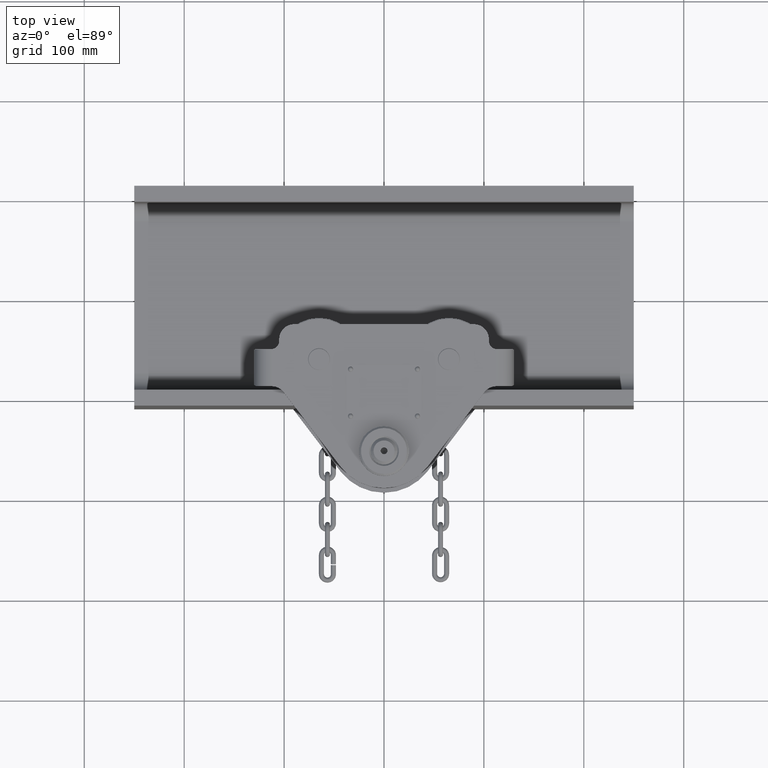
[diagram: clean part render]
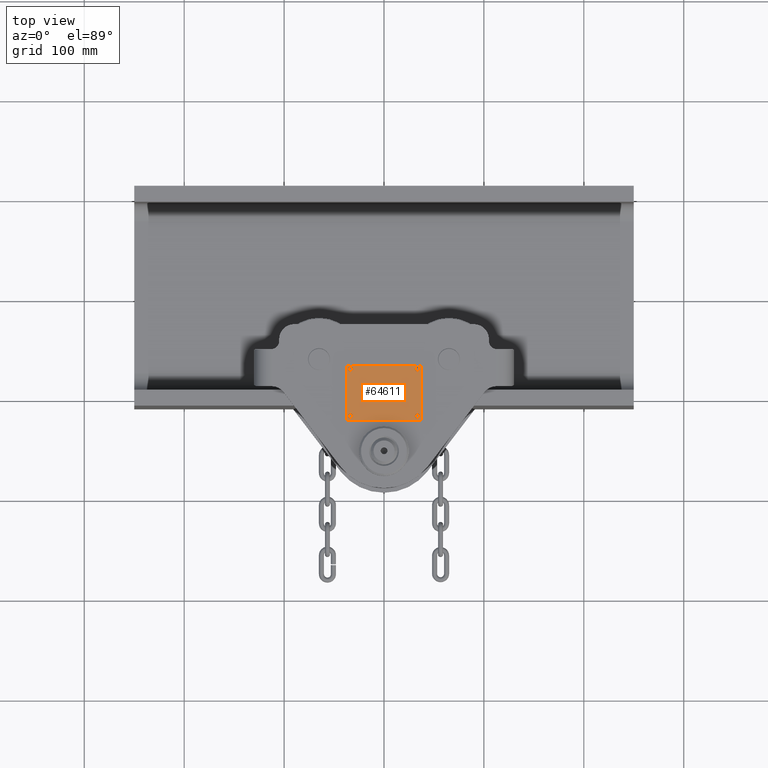
[diagram: same view with one face highlighted and labeled with its STEP entity id]
A machine part, top view. The second image highlights one B-rep face of the part: STEP entity #64611.
In plain terms, the highlighted planar face has unit normal (0, 0, -1).
Its self-contained STEP definition (entity closure, byte-faithful):
#44 = DIRECTION ( 'NONE',  ( 0.0000000000000000000, 0.0000000000000000000, 1.000000000000000000 ) ) ;
#3064 = EDGE_CURVE ( 'NONE', #79519, #25288, #83245, .T. ) ;
#3141 = AXIS2_PLACEMENT_3D ( 'NONE', #62006, #44, #15217 ) ;
#3700 = DIRECTION ( 'NONE',  ( 0.0000000000000000000, 0.0000000000000000000, 1.000000000000000000 ) ) ;
#4118 = CARTESIAN_POINT ( 'NONE',  ( -37.49999999999933900, -124.9999999999998400, 133.4999999999999700 ) ) ;
#4241 = CARTESIAN_POINT ( 'NONE',  ( 31.75000000000067500, -73.99999999999984400, 133.4999999999999700 ) ) ;
#6824 = CARTESIAN_POINT ( 'NONE',  ( -37.49999999999933900, -69.99999999999984400, 133.4999999999999700 ) ) ;
#7601 = DIRECTION ( 'NONE',  ( 1.000000000000000000, 0.0000000000000000000, 0.0000000000000000000 ) ) ;
#7819 = VERTEX_POINT ( 'NONE', #29752 ) ;
#9472 = FACE_OUTER_BOUND ( 'NONE', #55806, .T. ) ;
#9671 = ORIENTED_EDGE ( 'NONE', *, *, #13286, .F. ) ;
#9906 = CIRCLE ( 'NONE', #25981, 1.750000000000001600 ) ;
#10284 = ORIENTED_EDGE ( 'NONE', *, *, #23967, .T. ) ;
#12888 = VERTEX_POINT ( 'NONE', #38269 ) ;
#12932 = EDGE_CURVE ( 'NONE', #55283, #7819, #34115, .T. ) ;
#13286 = EDGE_CURVE ( 'NONE', #23690, #12888, #70353, .T. ) ;
#15217 = DIRECTION ( 'NONE',  ( 1.000000000000000000, 0.0000000000000000000, 0.0000000000000000000 ) ) ;
#15404 = DIRECTION ( 'NONE',  ( 1.000000000000000000, 0.0000000000000000000, 0.0000000000000000000 ) ) ;
#15478 = EDGE_LOOP ( 'NONE', ( #98629, #9671 ) ) ;
#16377 = CARTESIAN_POINT ( 'NONE',  ( -33.49999999999933900, -73.99999999999984400, 133.4999999999999700 ) ) ;
#16968 = LINE ( 'NONE', #73382, #59398 ) ;
#17963 = FACE_BOUND ( 'NONE', #79825, .T. ) ;
#19255 = CIRCLE ( 'NONE', #55939, 1.749999999999994700 ) ;
#22185 = VERTEX_POINT ( 'NONE', #57142 ) ;
#22869 = VERTEX_POINT ( 'NONE', #32150 ) ;
#23690 = VERTEX_POINT ( 'NONE', #37921 ) ;
#23788 = DIRECTION ( 'NONE',  ( 0.0000000000000000000, 1.000000000000000000, 0.0000000000000000000 ) ) ;
#23967 = EDGE_CURVE ( 'NONE', #25288, #97896, #16968, .T. ) ;
#24941 = CARTESIAN_POINT ( 'NONE',  ( 35.25000000000066100, -120.9999999999998400, 133.4999999999999700 ) ) ;
#25288 = VERTEX_POINT ( 'NONE', #54556 ) ;
#25566 = ORIENTED_EDGE ( 'NONE', *, *, #71378, .F. ) ;
#25981 = AXIS2_PLACEMENT_3D ( 'NONE', #53498, #92539, #69070 ) ;
#27515 = AXIS2_PLACEMENT_3D ( 'NONE', #86793, #39977, #54877 ) ;
#28516 = AXIS2_PLACEMENT_3D ( 'NONE', #16377, #85501, #7601 ) ;
#29752 = CARTESIAN_POINT ( 'NONE',  ( -31.74999999999933600, -73.99999999999984400, 133.4999999999999700 ) ) ;
#29917 = VECTOR ( 'NONE', #96694, 1000.000000000000000 ) ;
#30410 = DIRECTION ( 'NONE',  ( 0.0000000000000000000, 0.0000000000000000000, 1.000000000000000000 ) ) ;
#31268 = FACE_BOUND ( 'NONE', #76626, .T. ) ;
#32150 = CARTESIAN_POINT ( 'NONE',  ( 31.75000000000067500, -120.9999999999998400, 133.4999999999999700 ) ) ;
#32228 = EDGE_CURVE ( 'NONE', #55694, #22869, #51265, .T. ) ;
#33111 = LINE ( 'NONE', #86533, #71843 ) ;
#34115 = CIRCLE ( 'NONE', #3141, 1.750000000000001600 ) ;
#34353 = CIRCLE ( 'NONE', #47924, 1.749999999999994700 ) ;
#35591 = EDGE_LOOP ( 'NONE', ( #42181, #87185 ) ) ;
#35856 = EDGE_CURVE ( 'NONE', #7819, #55283, #97250, .T. ) ;
#37113 = ORIENTED_EDGE ( 'NONE', *, *, #59850, .T. ) ;
#37921 = CARTESIAN_POINT ( 'NONE',  ( -35.24999999999933900, -120.9999999999998400, 133.4999999999999700 ) ) ;
#38269 = CARTESIAN_POINT ( 'NONE',  ( -31.74999999999933600, -120.9999999999998400, 133.4999999999999700 ) ) ;
#39977 = DIRECTION ( 'NONE',  ( 0.0000000000000000000, 0.0000000000000000000, -1.000000000000000000 ) ) ;
#40438 = EDGE_CURVE ( 'NONE', #22869, #55694, #34353, .T. ) ;
#42181 = ORIENTED_EDGE ( 'NONE', *, *, #32228, .F. ) ;
#43932 = CARTESIAN_POINT ( 'NONE',  ( -35.24999999999933900, -73.99999999999984400, 133.4999999999999700 ) ) ;
#47846 = VECTOR ( 'NONE', #82902, 1000.000000000000000 ) ;
#47924 = AXIS2_PLACEMENT_3D ( 'NONE', #100554, #30410, #15404 ) ;
#48275 = CIRCLE ( 'NONE', #84067, 1.749999999999994700 ) ;
#50393 = EDGE_CURVE ( 'NONE', #22185, #79519, #94022, .T. ) ;
#50916 = VERTEX_POINT ( 'NONE', #92040 ) ;
#51265 = CIRCLE ( 'NONE', #61495, 1.749999999999994700 ) ;
#53498 = CARTESIAN_POINT ( 'NONE',  ( -33.49999999999933900, -120.9999999999998400, 133.4999999999999700 ) ) ;
#53872 = DIRECTION ( 'NONE',  ( 0.0000000000000000000, 0.0000000000000000000, 1.000000000000000000 ) ) ;
#54208 = ORIENTED_EDGE ( 'NONE', *, *, #50393, .T. ) ;
#54556 = CARTESIAN_POINT ( 'NONE',  ( -37.49999999999933900, -124.9999999999998400, 133.4999999999999700 ) ) ;
#54877 = DIRECTION ( 'NONE',  ( -1.000000000000000000, 0.0000000000000000000, -0.0000000000000000000 ) ) ;
#55283 = VERTEX_POINT ( 'NONE', #43932 ) ;
#55694 = VERTEX_POINT ( 'NONE', #24941 ) ;
#55806 = EDGE_LOOP ( 'NONE', ( #77609, #10284, #37113, #54208 ) ) ;
#55939 = AXIS2_PLACEMENT_3D ( 'NONE', #88962, #72953, #95768 ) ;
#57142 = CARTESIAN_POINT ( 'NONE',  ( 37.50000000000067500, -69.99999999999984400, 133.4999999999999700 ) ) ;
#58048 = DIRECTION ( 'NONE',  ( 1.000000000000000000, 0.0000000000000000000, 0.0000000000000000000 ) ) ;
#59183 = CARTESIAN_POINT ( 'NONE',  ( -33.49999999999933900, -120.9999999999998400, 133.4999999999999700 ) ) ;
#59398 = VECTOR ( 'NONE', #95924, 1000.000000000000000 ) ;
#59563 = CARTESIAN_POINT ( 'NONE',  ( -37.49999999999933900, -69.99999999999984400, 133.4999999999999700 ) ) ;
#59850 = EDGE_CURVE ( 'NONE', #97896, #22185, #33111, .T. ) ;
#60998 = AXIS2_PLACEMENT_3D ( 'NONE', #59183, #3700, #89446 ) ;
#61495 = AXIS2_PLACEMENT_3D ( 'NONE', #73275, #81095, #58048 ) ;
#62006 = CARTESIAN_POINT ( 'NONE',  ( -33.49999999999933900, -73.99999999999984400, 133.4999999999999700 ) ) ;
#62351 = DIRECTION ( 'NONE',  ( 1.000000000000000000, 0.0000000000000000000, 0.0000000000000000000 ) ) ;
#64611 = ADVANCED_FACE ( 'NONE', ( #94433, #74853, #31268, #17963, #9472 ), #70482, .F. ) ;
#69070 = DIRECTION ( 'NONE',  ( 1.000000000000000000, 0.0000000000000000000, 0.0000000000000000000 ) ) ;
#70112 = ORIENTED_EDGE ( 'NONE', *, *, #97217, .F. ) ;
#70353 = CIRCLE ( 'NONE', #60998, 1.750000000000001600 ) ;
#70476 = EDGE_CURVE ( 'NONE', #12888, #23690, #9906, .T. ) ;
#70482 = PLANE ( 'NONE',  #27515 ) ;
#71378 = EDGE_CURVE ( 'NONE', #50916, #86231, #19255, .T. ) ;
#71843 = VECTOR ( 'NONE', #23788, 1000.000000000000000 ) ;
#72953 = DIRECTION ( 'NONE',  ( 0.0000000000000000000, 0.0000000000000000000, 1.000000000000000000 ) ) ;
#73275 = CARTESIAN_POINT ( 'NONE',  ( 33.50000000000066800, -120.9999999999998400, 133.4999999999999700 ) ) ;
#73382 = CARTESIAN_POINT ( 'NONE',  ( -37.49999999999933900, -124.9999999999998400, 133.4999999999999700 ) ) ;
#74853 = FACE_BOUND ( 'NONE', #15478, .T. ) ;
#76626 = EDGE_LOOP ( 'NONE', ( #25566, #70112 ) ) ;
#77609 = ORIENTED_EDGE ( 'NONE', *, *, #3064, .T. ) ;
#79519 = VERTEX_POINT ( 'NONE', #6824 ) ;
#79825 = EDGE_LOOP ( 'NONE', ( #99978, #92163 ) ) ;
#81095 = DIRECTION ( 'NONE',  ( 0.0000000000000000000, 0.0000000000000000000, 1.000000000000000000 ) ) ;
#82902 = DIRECTION ( 'NONE',  ( -1.000000000000000000, -0.0000000000000000000, -0.0000000000000000000 ) ) ;
#83245 = LINE ( 'NONE', #4118, #29917 ) ;
#84067 = AXIS2_PLACEMENT_3D ( 'NONE', #86494, #53872, #62351 ) ;
#85501 = DIRECTION ( 'NONE',  ( 0.0000000000000000000, 0.0000000000000000000, 1.000000000000000000 ) ) ;
#86231 = VERTEX_POINT ( 'NONE', #4241 ) ;
#86494 = CARTESIAN_POINT ( 'NONE',  ( 33.50000000000066800, -73.99999999999984400, 133.4999999999999700 ) ) ;
#86533 = CARTESIAN_POINT ( 'NONE',  ( 37.50000000000067500, -124.9999999999998400, 133.4999999999999700 ) ) ;
#86793 = CARTESIAN_POINT ( 'NONE',  ( -37.49999999999933900, -69.99999999999984400, 133.4999999999999700 ) ) ;
#87185 = ORIENTED_EDGE ( 'NONE', *, *, #40438, .F. ) ;
#88962 = CARTESIAN_POINT ( 'NONE',  ( 33.50000000000066800, -73.99999999999984400, 133.4999999999999700 ) ) ;
#89446 = DIRECTION ( 'NONE',  ( 1.000000000000000000, 0.0000000000000000000, 0.0000000000000000000 ) ) ;
#92040 = CARTESIAN_POINT ( 'NONE',  ( 35.25000000000066100, -73.99999999999984400, 133.4999999999999700 ) ) ;
#92163 = ORIENTED_EDGE ( 'NONE', *, *, #12932, .F. ) ;
#92539 = DIRECTION ( 'NONE',  ( 0.0000000000000000000, 0.0000000000000000000, 1.000000000000000000 ) ) ;
#94022 = LINE ( 'NONE', #59563, #47846 ) ;
#94433 = FACE_BOUND ( 'NONE', #35591, .T. ) ;
#95358 = CARTESIAN_POINT ( 'NONE',  ( 37.50000000000067500, -124.9999999999998400, 133.4999999999999700 ) ) ;
#95768 = DIRECTION ( 'NONE',  ( 1.000000000000000000, 0.0000000000000000000, 0.0000000000000000000 ) ) ;
#95924 = DIRECTION ( 'NONE',  ( 1.000000000000000000, 0.0000000000000000000, 0.0000000000000000000 ) ) ;
#96694 = DIRECTION ( 'NONE',  ( -0.0000000000000000000, -1.000000000000000000, -0.0000000000000000000 ) ) ;
#97217 = EDGE_CURVE ( 'NONE', #86231, #50916, #48275, .T. ) ;
#97250 = CIRCLE ( 'NONE', #28516, 1.750000000000001600 ) ;
#97896 = VERTEX_POINT ( 'NONE', #95358 ) ;
#98629 = ORIENTED_EDGE ( 'NONE', *, *, #70476, .F. ) ;
#99978 = ORIENTED_EDGE ( 'NONE', *, *, #35856, .F. ) ;
#100554 = CARTESIAN_POINT ( 'NONE',  ( 33.50000000000066800, -120.9999999999998400, 133.4999999999999700 ) ) ;